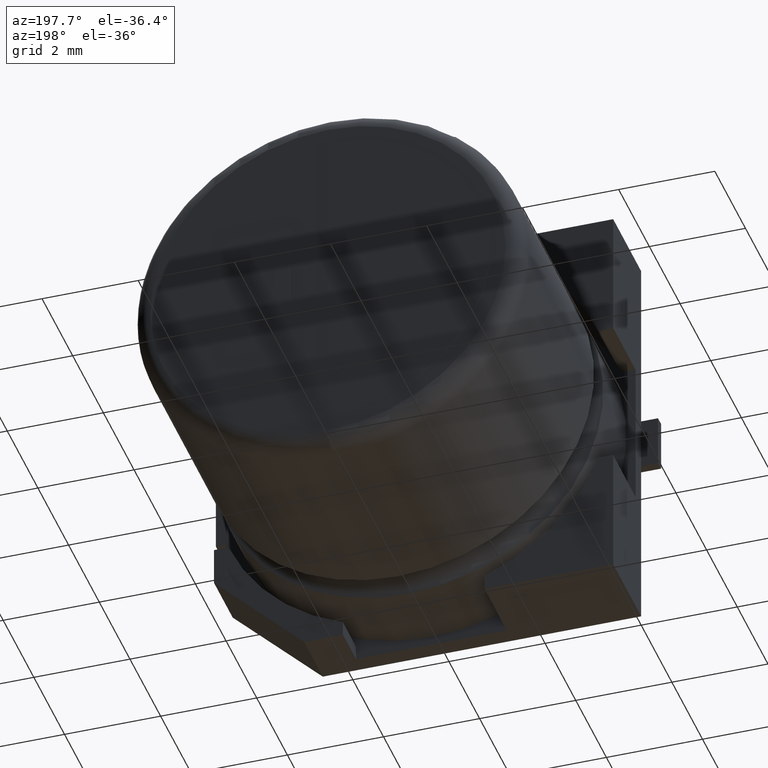
[diagram: clean part render]
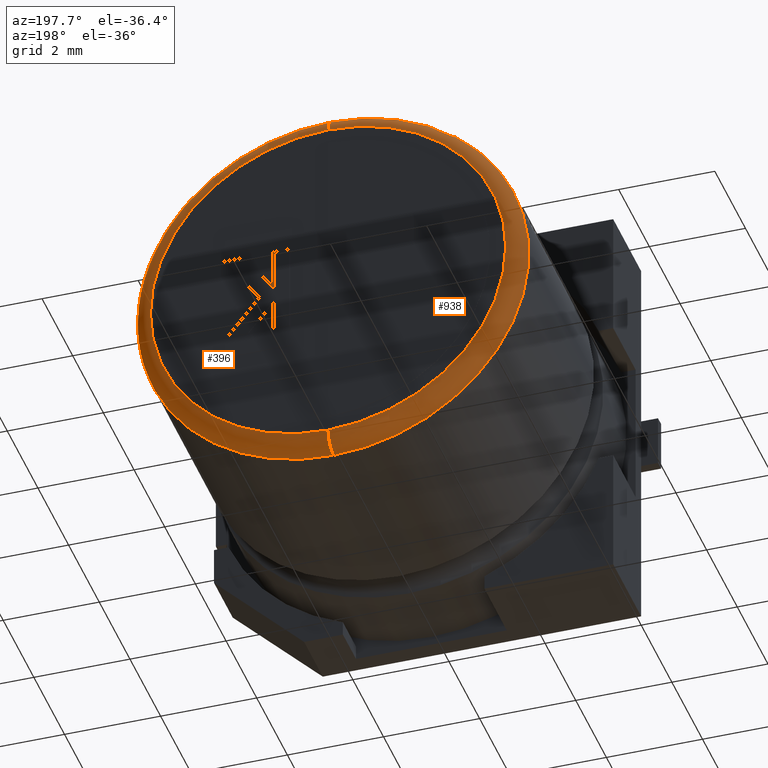
[diagram: same view with one multi-face feature highlighted, each face labeled with its STEP entity id]
A machine part, auxiliary view. The highlighted faces form ONE feature: a constant-radius fillet chain: 2 tangent blend faces with common blend radius 0.365 mm. The faces share edges in the B-rep.
Their STEP definitions:
[1] entity #396 (Torus):
#33 = DIRECTION ( 'NONE',  ( 0.0000000000000000000, 0.0000000000000000000, 1.000000000000000000 ) ) ;
#61 = EDGE_CURVE ( 'NONE', #3004, #597, #2352, .T. ) ;
#130 = AXIS2_PLACEMENT_3D ( 'NONE', #1864, #2633, #2463 ) ;
#131 = CARTESIAN_POINT ( 'NONE',  ( 4.250000000000000900, 7.099999999999999600, -7.947574999999998700 ) ) ;
#239 = CARTESIAN_POINT ( 'NONE',  ( 4.250000000000000000, 6.734999999999999400, -4.250000000000000000 ) ) ;
#340 = DIRECTION ( 'NONE',  ( 0.0000000000000000000, 1.000000000000000000, 0.0000000000000000000 ) ) ;
#396 = ADVANCED_FACE ( 'NONE', ( #2142 ), #1657, .T. ) ;
#597 = VERTEX_POINT ( 'NONE', #131 ) ;
#803 = DIRECTION ( 'NONE',  ( 0.0000000000000000000, 0.0000000000000000000, 1.000000000000000000 ) ) ;
#917 = CARTESIAN_POINT ( 'NONE',  ( 4.250000000000000000, 6.734999999999999400, -0.5524250000000013900 ) ) ;
#920 = CARTESIAN_POINT ( 'NONE',  ( 4.250000000000000000, 7.099999999999999600, -4.250000000000000000 ) ) ;
#936 = DIRECTION ( 'NONE',  ( -1.000000000000000000, 0.0000000000000000000, 0.0000000000000000000 ) ) ;
#950 = DIRECTION ( 'NONE',  ( 0.0000000000000000000, 0.0000000000000000000, 1.000000000000000000 ) ) ;
#985 = VERTEX_POINT ( 'NONE', #2694 ) ;
#1165 = EDGE_CURVE ( 'NONE', #985, #3004, #1842, .T. ) ;
#1179 = ORIENTED_EDGE ( 'NONE', *, *, #2079, .T. ) ;
#1280 = CARTESIAN_POINT ( 'NONE',  ( 4.250000000000000000, 6.734999999999999400, -8.312574999999998900 ) ) ;
#1397 = AXIS2_PLACEMENT_3D ( 'NONE', #239, #3412, #803 ) ;
#1459 = CIRCLE ( 'NONE', #130, 0.3650000000000007700 ) ;
#1657 = TOROIDAL_SURFACE ( 'NONE', #2019, 3.697574999999999200, 0.3649999999999999900 ) ;
#1842 = CIRCLE ( 'NONE', #3237, 0.3649999999999999900 ) ;
#1864 = CARTESIAN_POINT ( 'NONE',  ( 4.250000000000000900, 6.734999999999999400, -7.947574999999998700 ) ) ;
#1972 = EDGE_CURVE ( 'NONE', #2510, #985, #3051, .T. ) ;
#1997 = ORIENTED_EDGE ( 'NONE', *, *, #61, .F. ) ;
#2019 = AXIS2_PLACEMENT_3D ( 'NONE', #2425, #340, #33 ) ;
#2079 = EDGE_CURVE ( 'NONE', #2510, #597, #1459, .T. ) ;
#2139 = AXIS2_PLACEMENT_3D ( 'NONE', #920, #3245, #2200 ) ;
#2142 = FACE_OUTER_BOUND ( 'NONE', #2612, .T. ) ;
#2200 = DIRECTION ( 'NONE',  ( 0.0000000000000000000, 0.0000000000000000000, 1.000000000000000000 ) ) ;
#2352 = CIRCLE ( 'NONE', #2139, 3.697574999999999200 ) ;
#2425 = CARTESIAN_POINT ( 'NONE',  ( 4.250000000000000000, 6.734999999999999400, -4.250000000000000000 ) ) ;
#2463 = DIRECTION ( 'NONE',  ( 0.0000000000000000000, 0.0000000000000000000, -1.000000000000000000 ) ) ;
#2510 = VERTEX_POINT ( 'NONE', #1280 ) ;
#2612 = EDGE_LOOP ( 'NONE', ( #3138, #1179, #1997, #2649 ) ) ;
#2633 = DIRECTION ( 'NONE',  ( 1.000000000000000000, -0.0000000000000000000, 1.224646799147353200E-016 ) ) ;
#2649 = ORIENTED_EDGE ( 'NONE', *, *, #1165, .F. ) ;
#2655 = CARTESIAN_POINT ( 'NONE',  ( 4.250000000000000000, 7.099999999999999600, -0.5524250000000013900 ) ) ;
#2694 = CARTESIAN_POINT ( 'NONE',  ( 4.250000000000000900, 6.734999999999999400, -0.1874250000000014800 ) ) ;
#3004 = VERTEX_POINT ( 'NONE', #2655 ) ;
#3051 = CIRCLE ( 'NONE', #1397, 4.062574999999998900 ) ;
#3138 = ORIENTED_EDGE ( 'NONE', *, *, #1972, .F. ) ;
#3237 = AXIS2_PLACEMENT_3D ( 'NONE', #917, #936, #950 ) ;
#3245 = DIRECTION ( 'NONE',  ( 0.0000000000000000000, 1.000000000000000000, 0.0000000000000000000 ) ) ;
#3412 = DIRECTION ( 'NONE',  ( -0.0000000000000000000, -1.000000000000000000, -0.0000000000000000000 ) ) ;
[2] entity #938 (Torus):
#130 = AXIS2_PLACEMENT_3D ( 'NONE', #1864, #2633, #2463 ) ;
#131 = CARTESIAN_POINT ( 'NONE',  ( 4.250000000000000900, 7.099999999999999600, -7.947574999999998700 ) ) ;
#183 = EDGE_LOOP ( 'NONE', ( #1263, #650, #2772, #850 ) ) ;
#409 = CIRCLE ( 'NONE', #1672, 4.062574999999998900 ) ;
#447 = CARTESIAN_POINT ( 'NONE',  ( 4.250000000000000000, 6.734999999999999400, -4.250000000000000000 ) ) ;
#488 = CARTESIAN_POINT ( 'NONE',  ( 4.250000000000000000, 6.734999999999999400, -4.250000000000000000 ) ) ;
#597 = VERTEX_POINT ( 'NONE', #131 ) ;
#650 = ORIENTED_EDGE ( 'NONE', *, *, #3382, .F. ) ;
#827 = FACE_OUTER_BOUND ( 'NONE', #183, .T. ) ;
#850 = ORIENTED_EDGE ( 'NONE', *, *, #1145, .F. ) ;
#897 = DIRECTION ( 'NONE',  ( 0.0000000000000000000, 1.000000000000000000, 0.0000000000000000000 ) ) ;
#917 = CARTESIAN_POINT ( 'NONE',  ( 4.250000000000000000, 6.734999999999999400, -0.5524250000000013900 ) ) ;
#936 = DIRECTION ( 'NONE',  ( -1.000000000000000000, 0.0000000000000000000, 0.0000000000000000000 ) ) ;
#938 = ADVANCED_FACE ( 'NONE', ( #827 ), #1154, .T. ) ;
#950 = DIRECTION ( 'NONE',  ( 0.0000000000000000000, 0.0000000000000000000, 1.000000000000000000 ) ) ;
#985 = VERTEX_POINT ( 'NONE', #2694 ) ;
#1145 = EDGE_CURVE ( 'NONE', #597, #3004, #2811, .T. ) ;
#1154 = TOROIDAL_SURFACE ( 'NONE', #1392, 3.697574999999999200, 0.3649999999999999900 ) ;
#1165 = EDGE_CURVE ( 'NONE', #985, #3004, #1842, .T. ) ;
#1178 = DIRECTION ( 'NONE',  ( 0.0000000000000000000, 0.0000000000000000000, 1.000000000000000000 ) ) ;
#1263 = ORIENTED_EDGE ( 'NONE', *, *, #2079, .F. ) ;
#1280 = CARTESIAN_POINT ( 'NONE',  ( 4.250000000000000000, 6.734999999999999400, -8.312574999999998900 ) ) ;
#1392 = AXIS2_PLACEMENT_3D ( 'NONE', #488, #897, #3208 ) ;
#1441 = DIRECTION ( 'NONE',  ( 0.0000000000000000000, 1.000000000000000000, 0.0000000000000000000 ) ) ;
#1450 = CARTESIAN_POINT ( 'NONE',  ( 4.250000000000000000, 7.099999999999999600, -4.250000000000000000 ) ) ;
#1459 = CIRCLE ( 'NONE', #130, 0.3650000000000007700 ) ;
#1489 = AXIS2_PLACEMENT_3D ( 'NONE', #1450, #1441, #1178 ) ;
#1672 = AXIS2_PLACEMENT_3D ( 'NONE', #447, #3192, #1909 ) ;
#1842 = CIRCLE ( 'NONE', #3237, 0.3649999999999999900 ) ;
#1864 = CARTESIAN_POINT ( 'NONE',  ( 4.250000000000000900, 6.734999999999999400, -7.947574999999998700 ) ) ;
#1909 = DIRECTION ( 'NONE',  ( 0.0000000000000000000, 0.0000000000000000000, 1.000000000000000000 ) ) ;
#2079 = EDGE_CURVE ( 'NONE', #2510, #597, #1459, .T. ) ;
#2463 = DIRECTION ( 'NONE',  ( 0.0000000000000000000, 0.0000000000000000000, -1.000000000000000000 ) ) ;
#2510 = VERTEX_POINT ( 'NONE', #1280 ) ;
#2633 = DIRECTION ( 'NONE',  ( 1.000000000000000000, -0.0000000000000000000, 1.224646799147353200E-016 ) ) ;
#2655 = CARTESIAN_POINT ( 'NONE',  ( 4.250000000000000000, 7.099999999999999600, -0.5524250000000013900 ) ) ;
#2694 = CARTESIAN_POINT ( 'NONE',  ( 4.250000000000000900, 6.734999999999999400, -0.1874250000000014800 ) ) ;
#2772 = ORIENTED_EDGE ( 'NONE', *, *, #1165, .T. ) ;
#2811 = CIRCLE ( 'NONE', #1489, 3.697574999999999200 ) ;
#3004 = VERTEX_POINT ( 'NONE', #2655 ) ;
#3192 = DIRECTION ( 'NONE',  ( -0.0000000000000000000, -1.000000000000000000, -0.0000000000000000000 ) ) ;
#3208 = DIRECTION ( 'NONE',  ( 0.0000000000000000000, 0.0000000000000000000, 1.000000000000000000 ) ) ;
#3237 = AXIS2_PLACEMENT_3D ( 'NONE', #917, #936, #950 ) ;
#3382 = EDGE_CURVE ( 'NONE', #985, #2510, #409, .T. ) ;